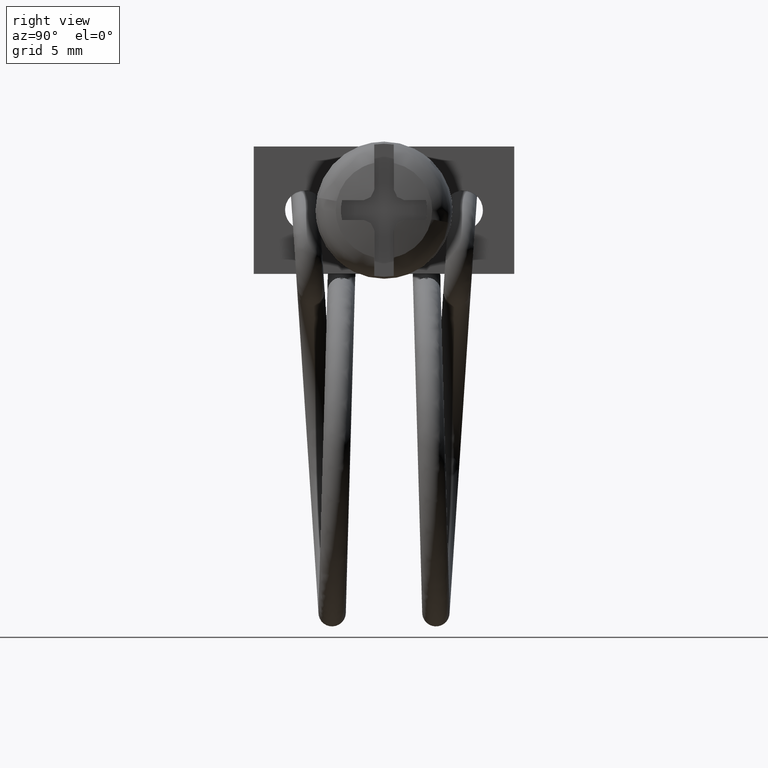
[diagram: clean part render]
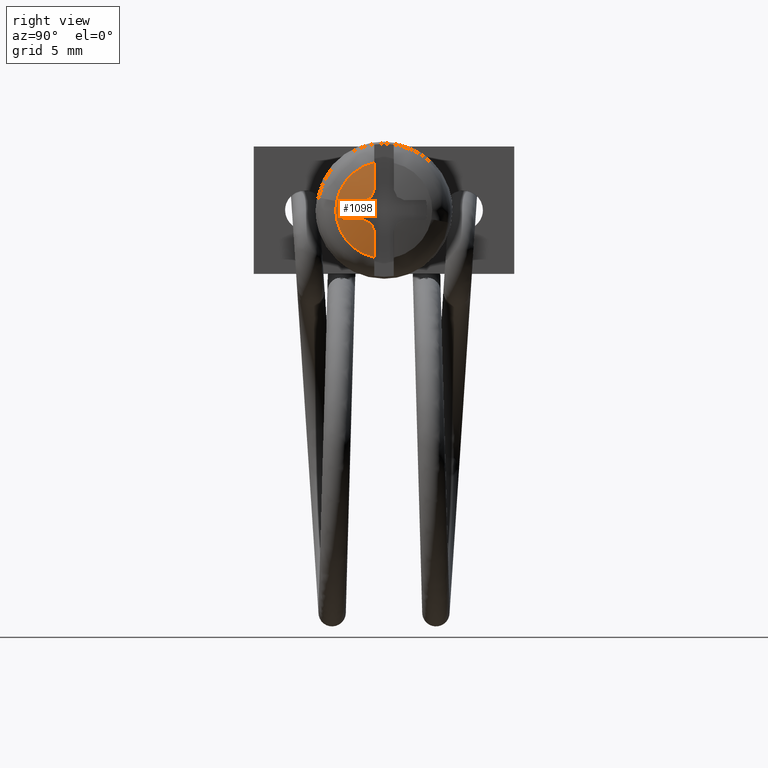
[diagram: same view with one face highlighted and labeled with its STEP entity id]
A machine part, right view. The second image highlights one B-rep face of the part: STEP entity #1098.
In plain terms, the highlighted face is a freeform B-spline surface patch.
Its self-contained STEP definition (entity closure, byte-faithful):
#957=CARTESIAN_POINT('',(1.853613220240995,-2.400996589679836,-2.667026189795678));
#958=CARTESIAN_POINT('',(2.039837619085760,-1.765063524957341,-2.663223224030079));
#959=CARTESIAN_POINT('',(2.181954831274097,-0.717920794054330,-2.643881603701006));
#960=CARTESIAN_POINT('',(2.199890604127196,-0.324188503687771,-2.633786713391380));
#961=CARTESIAN_POINT('',(2.410325046307003,-2.575263313239994,-0.787270521598074));
#962=CARTESIAN_POINT('',(2.608878845811607,-1.909592597125008,-0.772083321021528));
#963=CARTESIAN_POINT('',(2.757873822280864,-0.811773380518873,-0.751805662732054));
#964=CARTESIAN_POINT('',(2.775463528414928,-0.398828970197848,-0.745205855366218));
#965=CARTESIAN_POINT('',(2.045927553660801,-2.575263313239994,1.890227790446189));
#966=CARTESIAN_POINT('',(2.242310155435982,-1.909592597125008,1.921368389092050));
#967=CARTESIAN_POINT('',(2.391305131905239,-0.811773380518873,1.941646047381524));
#968=CARTESIAN_POINT('',(2.409666421949724,-0.398828970197848,1.942576456193732));
#969=CARTESIAN_POINT('',(1.832749956013153,-2.550030275680569,2.592124613308809));
#970=CARTESIAN_POINT('',(2.026557957665883,-1.888660543277014,2.627211190276594));
#971=CARTESIAN_POINT('',(2.174556831896865,-0.798180769951428,2.647353282781988));
#972=CARTESIAN_POINT('',(2.193248810551957,-0.388019737019182,2.646801963824173));
#980=(BOUNDED_SURFACE()B_SPLINE_SURFACE(2,2,((#957,#961,#965,#969),(#958,#962,#966,#970),(#959,#963,#967,#971),(#960,#964,#968,#972)),.UNSPECIFIED.,.F.,.F.,.U.)B_SPLINE_SURFACE_WITH_KNOTS((3,1,3),(3,1,3),(0.0,1.386373825947829,2.211251978146524),(0.0,3.951105774609329,5.424575118076634),.UNSPECIFIED.)GEOMETRIC_REPRESENTATION_ITEM()RATIONAL_B_SPLINE_SURFACE(((1.054353335007868,1.005958322362913,1.005958322362913,1.012688794087450),(1.048395012644955,1.0,1.0,1.006730471724538),(1.048395012644955,1.0,1.0,1.006730471724538),(1.050504334716629,1.002109322071674,1.002109322071674,1.008839793796212)))REPRESENTATION_ITEM('')SURFACE());
#981=CARTESIAN_POINT('',(2.256508772548170,-2.419044500106658,0.461457418157627));
#982=VERTEX_POINT('',#981);
#983=CARTESIAN_POINT('',(2.256508772695955,-0.499000000000081,2.411580029712945));
#984=VERTEX_POINT('',#983);
#985=CARTESIAN_POINT('',(2.256508772548170,-2.419044500106658,0.461457418157627));
#986=CARTESIAN_POINT('',(2.256508772554278,-2.393565494523664,0.595064234029871));
#987=CARTESIAN_POINT('',(2.256508772567887,-2.316334539586336,0.872653381468651));
#988=CARTESIAN_POINT('',(2.256508772588031,-2.146034835140493,1.228612814402654));
#989=CARTESIAN_POINT('',(2.256508772608976,-1.922812106090036,1.552977471780320));
#990=CARTESIAN_POINT('',(2.256508772631059,-1.643729209821874,1.852581286366944));
#991=CARTESIAN_POINT('',(2.256508772654209,-1.295621482776521,2.109965286334857));
#992=CARTESIAN_POINT('',(2.256508772676481,-0.901142299912479,2.304003385541224));
#993=CARTESIAN_POINT('',(2.256508772689667,-0.639597229238574,2.382502542284844));
#994=CARTESIAN_POINT('',(2.256508772695955,-0.499000000000081,2.411580029712945));
#995=B_SPLINE_CURVE_WITH_KNOTS('',3,(#985,#986,#987,#988,#989,#990,#991,#992,#993,#994),.UNSPECIFIED.,.F.,.U.,(4,1,1,1,1,1,1,4),(0.000000012293598,0.408045174658689,0.861434874994326,1.178809973177237,1.586849748940092,2.085577981038718,2.470958797014281,2.901674786604211),.UNSPECIFIED.);
#996=EDGE_CURVE('',#982,#984,#995,.T.);
#997=ORIENTED_EDGE('',*,*,#996,.F.);
#998=CARTESIAN_POINT('',(2.256508772695955,-0.499000000000081,-2.411580029712945));
#999=VERTEX_POINT('',#998);
#1000=CARTESIAN_POINT('',(2.256508772695955,-0.499000000000081,-2.411580029712945));
#1001=CARTESIAN_POINT('',(2.256508772690186,-0.684589656492066,-2.373221479760360));
#1002=CARTESIAN_POINT('',(2.256508772680016,-0.970541204014739,-2.278552270271677));
#1003=CARTESIAN_POINT('',(2.256508772662201,-1.382481078170935,-2.052598095270542));
#1004=CARTESIAN_POINT('',(2.256508772645860,-1.696410068672140,-1.802948622906671));
#1005=CARTESIAN_POINT('',(2.256508772627632,-1.980858916977891,-1.480431867828572));
#1006=CARTESIAN_POINT('',(2.256508772612652,-2.168389204918077,-1.184492634091887));
#1007=CARTESIAN_POINT('',(2.256508772597479,-2.316694984025710,-0.856893485173660));
#1008=CARTESIAN_POINT('',(2.256508772585208,-2.402943216533285,-0.569392144222728));
#1009=CARTESIAN_POINT('',(2.256508772571979,-2.458328869485888,-0.234415204494193));
#1010=CARTESIAN_POINT('',(2.256508772559973,-2.470311260467902,0.095539937048699));
#1011=CARTESIAN_POINT('',(2.256508772551817,-2.441476464738541,0.343888961991567));
#1012=CARTESIAN_POINT('',(2.256508772548170,-2.419044500106658,0.461457418157627));
#1013=B_SPLINE_CURVE_WITH_KNOTS('',3,(#1000,#1001,#1002,#1003,#1004,#1005,#1006,#1007,#1008,#1009,#1010,#1011,#1012),.UNSPECIFIED.,.F.,.U.,(4,1,1,1,1,1,1,1,1,1,4),(0.000000010263566,0.568527327101778,0.897677552108423,1.406366397516519,1.765440694343387,2.184342484234565,2.453647268383518,2.842645539404912,3.082028291248379,3.471020400900424,3.830090959873938),.UNSPECIFIED.);
#1014=EDGE_CURVE('',#999,#982,#1013,.T.);
#1015=ORIENTED_EDGE('',*,*,#1014,.F.);
#1016=CARTESIAN_POINT('',(2.525676197765005,-0.498999999999882,-1.040780000000096));
#1017=VERTEX_POINT('',#1016);
#1018=CARTESIAN_POINT('',(2.256508772695955,-0.499000000000081,-2.411580029712945));
#1019=CARTESIAN_POINT('',(2.381622552223354,-0.499000000000147,-1.962554311874724));
#1020=CARTESIAN_POINT('',(2.471703742593218,-0.499000000000081,-1.503774944733838));
#1021=CARTESIAN_POINT('',(2.525676197765005,-0.498999999999882,-1.040780000000096));
#1022=B_SPLINE_CURVE_WITH_KNOTS('',3,(#1018,#1019,#1020,#1021),.UNSPECIFIED.,.F.,.U.,(4,4),(1.215499E-010,1.398388587120931),.UNSPECIFIED.);
#1023=EDGE_CURVE('',#999,#1017,#1022,.T.);
#1024=ORIENTED_EDGE('',*,*,#1023,.T.);
#1025=CARTESIAN_POINT('',(2.549754565747130,-0.670999999999992,-0.672000000000196));
#1026=VERTEX_POINT('',#1025);
#1027=CARTESIAN_POINT('',(2.525676197765005,-0.498999999999882,-1.040780000000096));
#1028=CARTESIAN_POINT('',(2.536788762969862,-0.556246074382679,-0.918040422611324));
#1029=CARTESIAN_POINT('',(2.544817559354980,-0.613599415792603,-0.795070857232649));
#1030=CARTESIAN_POINT('',(2.549754565747130,-0.670999999999992,-0.672000000000196));
#1031=B_SPLINE_CURVE_WITH_KNOTS('',3,(#1027,#1028,#1029,#1030),.UNSPECIFIED.,.F.,.U.,(4,4),(6.681045E-012,0.407666050073982),.UNSPECIFIED.);
#1032=EDGE_CURVE('',#1017,#1026,#1031,.T.);
#1033=ORIENTED_EDGE('',*,*,#1032,.T.);
#1034=CARTESIAN_POINT('',(2.525833554410715,-1.038948999999774,-0.500000000000099));
#1035=VERTEX_POINT('',#1034);
#1036=CARTESIAN_POINT('',(2.549754565747130,-0.670999999999992,-0.672000000000196));
#1037=CARTESIAN_POINT('',(2.544858625298938,-0.793792452748219,-0.614599920443709));
#1038=CARTESIAN_POINT('',(2.536882143795916,-0.916484765845376,-0.557246651776762));
#1039=CARTESIAN_POINT('',(2.525833554410715,-1.038948999999774,-0.500000000000099));
#1040=B_SPLINE_CURVE_WITH_KNOTS('',3,(#1036,#1037,#1038,#1039),.UNSPECIFIED.,.F.,.U.,(4,4),(6.617928E-012,0.406904923706294),.UNSPECIFIED.);
#1041=EDGE_CURVE('',#1026,#1035,#1040,.T.);
#1042=ORIENTED_EDGE('',*,*,#1041,.T.);
#1043=CARTESIAN_POINT('',(2.326710178449875,-2.143455384278160,-0.500000015609074));
#1044=VERTEX_POINT('',#1043);
#1045=CARTESIAN_POINT('',(2.525833554410715,-1.038948999999774,-0.500000000000099));
#1046=CARTESIAN_POINT('',(2.482561100827089,-1.410787741189160,-0.499999994789324));
#1047=CARTESIAN_POINT('',(2.416009198378134,-1.779914435223102,-0.500000000007945));
#1048=CARTESIAN_POINT('',(2.326710178449875,-2.143455384278160,-0.500000015609074));
#1049=B_SPLINE_CURVE_WITH_KNOTS('',3,(#1045,#1046,#1047,#1048),.UNSPECIFIED.,.F.,.U.,(4,4),(6.500223E-011,1.123043530646827),.UNSPECIFIED.);
#1050=EDGE_CURVE('',#1035,#1044,#1049,.T.);
#1051=ORIENTED_EDGE('',*,*,#1050,.T.);
#1052=CARTESIAN_POINT('',(2.326710177555480,-2.143454999999875,0.499999999999901));
#1053=VERTEX_POINT('',#1052);
#1054=CARTESIAN_POINT('',(2.326710178449875,-2.143455384278160,-0.500000015609074));
#1055=CARTESIAN_POINT('',(2.326710178211880,-2.174496867887927,-0.366964917827437));
#1056=CARTESIAN_POINT('',(2.326710177736968,-2.220307457388408,-0.032353072156098));
#1057=CARTESIAN_POINT('',(2.326710177555213,-2.188883402624165,0.305568127033816));
#1058=CARTESIAN_POINT('',(2.326710177555480,-2.143454999999875,0.499999999999901));
#1059=B_SPLINE_CURVE_WITH_KNOTS('',3,(#1054,#1055,#1056,#1057,#1058),.UNSPECIFIED.,.F.,.U.,(4,1,4),(8.513412E-010,0.409831442168988,1.008815790190824),.UNSPECIFIED.);
#1060=EDGE_CURVE('',#1044,#1053,#1059,.T.);
#1061=ORIENTED_EDGE('',*,*,#1060,.T.);
#1062=CARTESIAN_POINT('',(2.525833554411050,-1.038948999999774,0.499999999999901));
#1063=VERTEX_POINT('',#1062);
#1064=CARTESIAN_POINT('',(2.326710177555480,-2.143454999999875,0.499999999999901));
#1065=CARTESIAN_POINT('',(2.416010219206775,-1.779914375706689,0.499999999999902));
#1066=CARTESIAN_POINT('',(2.482560219111735,-1.410787428807391,0.499999999999899));
#1067=CARTESIAN_POINT('',(2.525833554411050,-1.038948999999774,0.499999999999901));
#1068=B_SPLINE_CURVE_WITH_KNOTS('',3,(#1064,#1065,#1066,#1067),.UNSPECIFIED.,.F.,.U.,(4,4),(6.498313E-011,1.123043155752777),.UNSPECIFIED.);
#1069=EDGE_CURVE('',#1053,#1063,#1068,.T.);
#1070=ORIENTED_EDGE('',*,*,#1069,.T.);
#1071=CARTESIAN_POINT('',(2.549754565747130,-0.670999999999992,0.671999999999898));
#1072=VERTEX_POINT('',#1071);
#1073=CARTESIAN_POINT('',(2.525833554411050,-1.038948999999774,0.499999999999901));
#1074=CARTESIAN_POINT('',(2.536882179266980,-0.916484813022575,0.557246629723314));
#1075=CARTESIAN_POINT('',(2.544858583960052,-0.793792495827371,0.614599900305887));
#1076=CARTESIAN_POINT('',(2.549754565747130,-0.670999999999992,0.671999999999898));
#1077=B_SPLINE_CURVE_WITH_KNOTS('',3,(#1073,#1074,#1075,#1076),.UNSPECIFIED.,.F.,.U.,(4,4),(6.619039E-012,0.406904923706227),.UNSPECIFIED.);
#1078=EDGE_CURVE('',#1063,#1072,#1077,.T.);
#1079=ORIENTED_EDGE('',*,*,#1078,.T.);
#1080=CARTESIAN_POINT('',(2.525676197765005,-0.499000000000081,1.040779999999900));
#1081=VERTEX_POINT('',#1080);
#1082=CARTESIAN_POINT('',(2.549754565747130,-0.670999999999992,0.671999999999898));
#1083=CARTESIAN_POINT('',(2.544817616352739,-0.613599317184943,0.795071068653821));
#1084=CARTESIAN_POINT('',(2.536788687115397,-0.556246228039644,0.918040093159720));
#1085=CARTESIAN_POINT('',(2.525676197765005,-0.499000000000081,1.040779999999900));
#1086=B_SPLINE_CURVE_WITH_KNOTS('',3,(#1082,#1083,#1084,#1085),.UNSPECIFIED.,.F.,.U.,(4,4),(6.682044E-012,0.407666050073992),.UNSPECIFIED.);
#1087=EDGE_CURVE('',#1072,#1081,#1086,.T.);
#1088=ORIENTED_EDGE('',*,*,#1087,.T.);
#1089=CARTESIAN_POINT('',(2.525676197765005,-0.499000000000081,1.040779999999900));
#1090=CARTESIAN_POINT('',(2.471707570781053,-0.499000000000078,1.503775619340730));
#1091=CARTESIAN_POINT('',(2.381618753937841,-0.499000000000083,1.962553570195583));
#1092=CARTESIAN_POINT('',(2.256508772695955,-0.499000000000081,2.411580029712945));
#1093=B_SPLINE_CURVE_WITH_KNOTS('',3,(#1089,#1090,#1091,#1092),.UNSPECIFIED.,.F.,.U.,(4,4),(1.216078E-010,1.398388587113223),.UNSPECIFIED.);
#1094=EDGE_CURVE('',#1081,#984,#1093,.T.);
#1095=ORIENTED_EDGE('',*,*,#1094,.T.);
#1096=EDGE_LOOP('',(#997,#1015,#1024,#1033,#1042,#1051,#1061,#1070,#1079,#1088,#1095));
#1097=FACE_OUTER_BOUND('',#1096,.T.);
#1098=ADVANCED_FACE('',(#1097),#980,.T.);